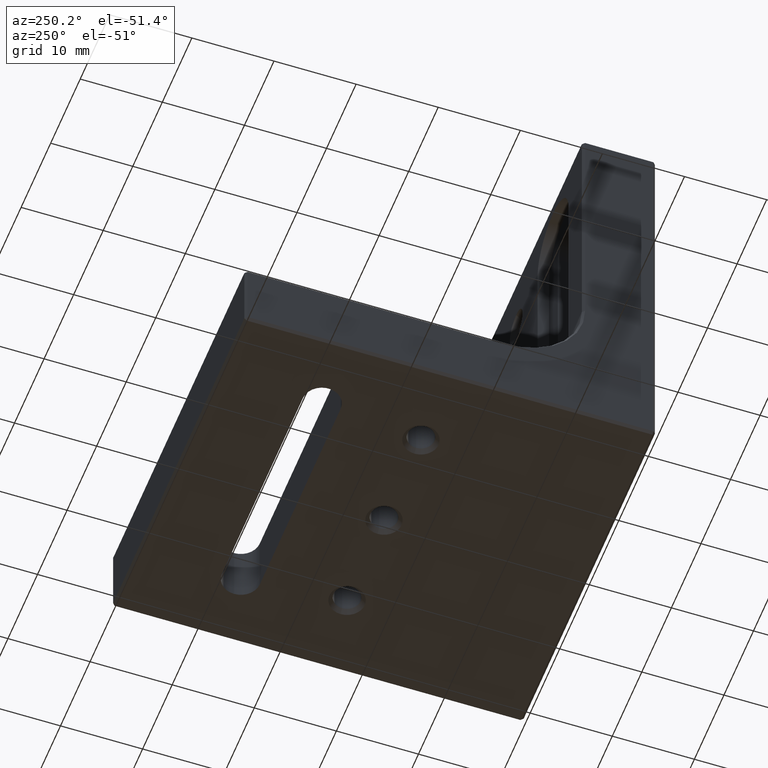
[diagram: clean part render]
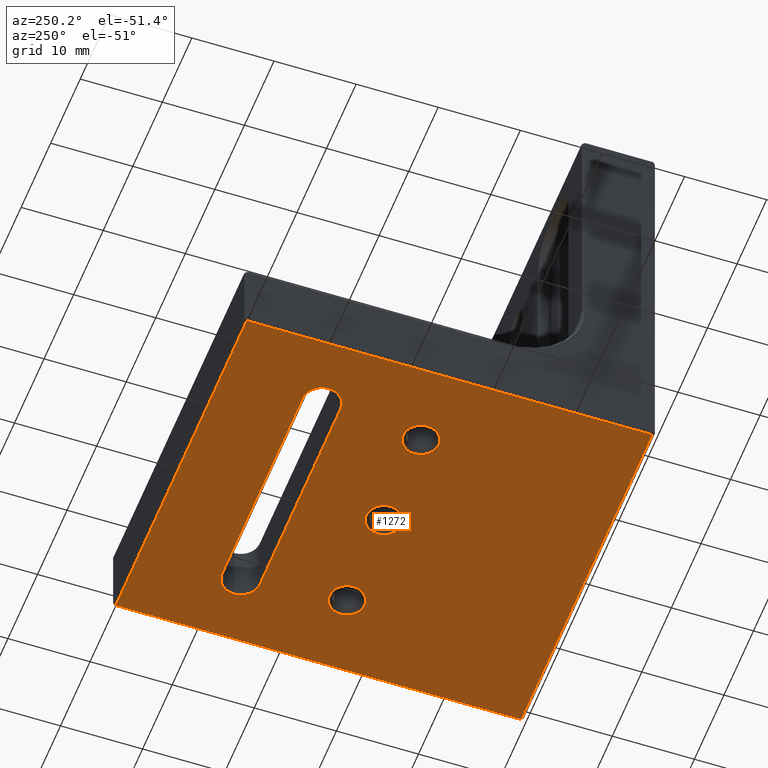
[diagram: same view with one face highlighted and labeled with its STEP entity id]
A machine part, auxiliary view. The second image highlights one B-rep face of the part: STEP entity #1272.
In plain terms, the highlighted planar face has unit normal (0, 0, 1).
Its self-contained STEP definition (entity closure, byte-faithful):
#21 = ORIENTED_EDGE ( 'NONE', *, *, #2597, .T. ) ;
#175 = VERTEX_POINT ( 'NONE', #3523 ) ;
#230 = VERTEX_POINT ( 'NONE', #2139 ) ;
#255 = EDGE_CURVE ( 'NONE', #2031, #3645, #947, .T. ) ;
#279 = DIRECTION ( 'NONE',  ( -0.000000000000000000, -0.000000000000000000, 1.000000000000000000 ) ) ;
#288 = LINE ( 'NONE', #1409, #406 ) ;
#303 = LINE ( 'NONE', #2018, #1726 ) ;
#340 = VERTEX_POINT ( 'NONE', #1391 ) ;
#346 = CIRCLE ( 'NONE', #516, 2.149999999999978151 ) ;
#358 = CARTESIAN_POINT ( 'NONE',  ( 13.70000000000000107, 39.79999999999998295, 0.000000000000000000 ) ) ;
#406 = VECTOR ( 'NONE', #586, 1000.000000000000000 ) ;
#449 = DIRECTION ( 'NONE',  ( 0.000000000000000000, 0.000000000000000000, 1.000000000000000000 ) ) ;
#466 = DIRECTION ( 'NONE',  ( 0.000000000000000000, 0.000000000000000000, 1.000000000000000000 ) ) ;
#478 = DIRECTION ( 'NONE',  ( 1.000000000000000000, 0.000000000000000000, -0.000000000000000000 ) ) ;
#495 = DIRECTION ( 'NONE',  ( 0.000000000000000000, 0.000000000000000000, 1.000000000000000000 ) ) ;
#516 = AXIS2_PLACEMENT_3D ( 'NONE', #1996, #555, #1729 ) ;
#555 = DIRECTION ( 'NONE',  ( 0.000000000000000000, 0.000000000000000000, 1.000000000000000000 ) ) ;
#563 = ORIENTED_EDGE ( 'NONE', *, *, #2014, .T. ) ;
#565 = EDGE_CURVE ( 'NONE', #1423, #1483, #2573, .T. ) ;
#586 = DIRECTION ( 'NONE',  ( 1.000000000000000000, -0.000000000000000000, -0.000000000000000000 ) ) ;
#632 = DIRECTION ( 'NONE',  ( 1.000000000000000000, 0.000000000000000000, 0.000000000000000000 ) ) ;
#636 = CIRCLE ( 'NONE', #3324, 2.149999999999978151 ) ;
#698 = CIRCLE ( 'NONE', #1666, 2.149999999999978151 ) ;
#754 = FACE_BOUND ( 'NONE', #3300, .T. ) ;
#786 = CARTESIAN_POINT ( 'NONE',  ( 2.149999999999978151, 24.99999999999999289, 0.000000000000000000 ) ) ;
#808 = VERTEX_POINT ( 'NONE', #3491 ) ;
#827 = AXIS2_PLACEMENT_3D ( 'NONE', #2608, #851, #3422 ) ;
#851 = DIRECTION ( 'NONE',  ( 0.000000000000000000, 0.000000000000000000, 1.000000000000000000 ) ) ;
#896 = VERTEX_POINT ( 'NONE', #3306 ) ;
#947 = LINE ( 'NONE', #2798, #2863 ) ;
#985 = ORIENTED_EDGE ( 'NONE', *, *, #1974, .T. ) ;
#1039 = EDGE_CURVE ( 'NONE', #1483, #1749, #2163, .T. ) ;
#1048 = DIRECTION ( 'NONE',  ( -0.000000000000000000, -0.000000000000000000, 1.000000000000000000 ) ) ;
#1059 = AXIS2_PLACEMENT_3D ( 'NONE', #3011, #449, #3601 ) ;
#1115 = ORIENTED_EDGE ( 'NONE', *, *, #1039, .T. ) ;
#1126 = CARTESIAN_POINT ( 'NONE',  ( -22.20000000000000284, 0.000000000000000000, 0.000000000000000000 ) ) ;
#1152 = CARTESIAN_POINT ( 'NONE',  ( 13.70000000000000107, 35.20000000000000284, 0.000000000000000000 ) ) ;
#1201 = DIRECTION ( 'NONE',  ( 0.000000000000000000, 0.000000000000000000, 1.000000000000000000 ) ) ;
#1266 = CARTESIAN_POINT ( 'NONE',  ( -13.70000000000000107, 39.79999999999998295, 0.000000000000000000 ) ) ;
#1271 = ORIENTED_EDGE ( 'NONE', *, *, #255, .T. ) ;
#1272 = ADVANCED_FACE ( 'NONE', ( #1883, #3337, #3597, #3006, #754 ), #3040, .F. ) ;
#1320 = ORIENTED_EDGE ( 'NONE', *, *, #1993, .T. ) ;
#1351 = AXIS2_PLACEMENT_3D ( 'NONE', #3581, #1593, #478 ) ;
#1384 = EDGE_CURVE ( 'NONE', #896, #2415, #2888, .T. ) ;
#1391 = CARTESIAN_POINT ( 'NONE',  ( 10.35000000000002274, 24.99999999999999289, 0.000000000000000000 ) ) ;
#1393 = DIRECTION ( 'NONE',  ( -1.000000000000000000, 0.000000000000000000, 0.000000000000000000 ) ) ;
#1409 = CARTESIAN_POINT ( 'NONE',  ( -13.70000000000000107, 39.79999999999998295, 0.000000000000000000 ) ) ;
#1415 = AXIS2_PLACEMENT_3D ( 'NONE', #1460, #279, #3417 ) ;
#1421 = CARTESIAN_POINT ( 'NONE',  ( 13.70000000000000107, 37.49999999999999289, 0.000000000000000000 ) ) ;
#1423 = VERTEX_POINT ( 'NONE', #1704 ) ;
#1460 = CARTESIAN_POINT ( 'NONE',  ( -13.70000000000000107, 37.49999999999999289, 0.000000000000000000 ) ) ;
#1470 = EDGE_LOOP ( 'NONE', ( #563, #1592 ) ) ;
#1483 = VERTEX_POINT ( 'NONE', #1152 ) ;
#1485 = CIRCLE ( 'NONE', #827, 2.149999999999978151 ) ;
#1490 = ORIENTED_EDGE ( 'NONE', *, *, #3681, .F. ) ;
#1577 = VERTEX_POINT ( 'NONE', #786 ) ;
#1592 = ORIENTED_EDGE ( 'NONE', *, *, #2175, .T. ) ;
#1593 = DIRECTION ( 'NONE',  ( 0.000000000000000000, 0.000000000000000000, 1.000000000000000000 ) ) ;
#1627 = EDGE_CURVE ( 'NONE', #2890, #1423, #3499, .T. ) ;
#1649 = DIRECTION ( 'NONE',  ( 1.000000000000000000, 0.000000000000000000, 0.000000000000000000 ) ) ;
#1655 = DIRECTION ( 'NONE',  ( 1.000000000000000000, 0.000000000000000000, 0.000000000000000000 ) ) ;
#1666 = AXIS2_PLACEMENT_3D ( 'NONE', #2002, #1201, #632 ) ;
#1671 = VECTOR ( 'NONE', #2268, 1000.000000000000000 ) ;
#1691 = DIRECTION ( 'NONE',  ( 1.000000000000000000, 0.000000000000000000, 0.000000000000000000 ) ) ;
#1694 = EDGE_CURVE ( 'NONE', #3645, #896, #303, .T. ) ;
#1697 = DIRECTION ( 'NONE',  ( 0.000000000000000000, -1.000000000000000000, 0.000000000000000000 ) ) ;
#1704 = CARTESIAN_POINT ( 'NONE',  ( -13.70000000000001172, 35.20000000000000284, 0.000000000000000000 ) ) ;
#1708 = DIRECTION ( 'NONE',  ( -0.000000000000000000, -0.000000000000000000, 1.000000000000000000 ) ) ;
#1718 = CARTESIAN_POINT ( 'NONE',  ( 22.20000000000000284, 49.70000000000000995, 0.000000000000000000 ) ) ;
#1726 = VECTOR ( 'NONE', #1697, 1000.000000000000000 ) ;
#1729 = DIRECTION ( 'NONE',  ( 1.000000000000000000, 0.000000000000000000, 0.000000000000000000 ) ) ;
#1739 = CARTESIAN_POINT ( 'NONE',  ( -13.70000000000001172, 35.20000000000000284, 0.000000000000000000 ) ) ;
#1743 = VERTEX_POINT ( 'NONE', #358 ) ;
#1746 = AXIS2_PLACEMENT_3D ( 'NONE', #1421, #1708, #1691 ) ;
#1749 = VERTEX_POINT ( 'NONE', #2070 ) ;
#1883 = FACE_BOUND ( 'NONE', #1470, .T. ) ;
#1955 = EDGE_CURVE ( 'NONE', #2620, #175, #2442, .T. ) ;
#1974 = EDGE_CURVE ( 'NONE', #230, #1577, #2908, .T. ) ;
#1978 = LINE ( 'NONE', #1126, #1671 ) ;
#1986 = DIRECTION ( 'NONE',  ( 1.000000000000000000, -0.000000000000000000, -0.000000000000000000 ) ) ;
#1993 = EDGE_CURVE ( 'NONE', #1749, #1743, #3439, .T. ) ;
#1996 = CARTESIAN_POINT ( 'NONE',  ( 12.50000000000000000, 24.99999999999999289, 0.000000000000000000 ) ) ;
#2002 = CARTESIAN_POINT ( 'NONE',  ( -12.50000000000000000, 24.99999999999999289, 0.000000000000000000 ) ) ;
#2014 = EDGE_CURVE ( 'NONE', #340, #808, #636, .T. ) ;
#2018 = CARTESIAN_POINT ( 'NONE',  ( 22.20000000000000284, 0.000000000000000000, 0.000000000000000000 ) ) ;
#2023 = ORIENTED_EDGE ( 'NONE', *, *, #3454, .T. ) ;
#2031 = VERTEX_POINT ( 'NONE', #3170 ) ;
#2070 = CARTESIAN_POINT ( 'NONE',  ( 15.99999999999998934, 37.49999999999999289, 0.000000000000000000 ) ) ;
#2139 = CARTESIAN_POINT ( 'NONE',  ( -2.149999999999978151, 24.99999999999999289, 0.000000000000000000 ) ) ;
#2155 = VECTOR ( 'NONE', #1393, 1000.000000000000000 ) ;
#2163 = CIRCLE ( 'NONE', #1746, 2.299999999999989608 ) ;
#2175 = EDGE_CURVE ( 'NONE', #808, #340, #346, .T. ) ;
#2210 = ORIENTED_EDGE ( 'NONE', *, *, #1384, .T. ) ;
#2268 = DIRECTION ( 'NONE',  ( 0.000000000000000000, 1.000000000000000000, 0.000000000000000000 ) ) ;
#2352 = CARTESIAN_POINT ( 'NONE',  ( -14.64999999999997904, 24.99999999999999289, 0.000000000000000000 ) ) ;
#2362 = ORIENTED_EDGE ( 'NONE', *, *, #1627, .T. ) ;
#2391 = EDGE_LOOP ( 'NONE', ( #985, #21 ) ) ;
#2401 = EDGE_LOOP ( 'NONE', ( #2023, #1271, #3367, #2210 ) ) ;
#2415 = VERTEX_POINT ( 'NONE', #3390 ) ;
#2442 = CIRCLE ( 'NONE', #2679, 2.149999999999978151 ) ;
#2461 = CARTESIAN_POINT ( 'NONE',  ( 13.70000000000000107, 37.49999999999999289, 0.000000000000000000 ) ) ;
#2479 = EDGE_LOOP ( 'NONE', ( #2842, #3187 ) ) ;
#2511 = VECTOR ( 'NONE', #1986, 1000.000000000000000 ) ;
#2573 = LINE ( 'NONE', #1739, #2511 ) ;
#2597 = EDGE_CURVE ( 'NONE', #1577, #230, #1485, .T. ) ;
#2608 = CARTESIAN_POINT ( 'NONE',  ( 0.000000000000000000, 24.99999999999999289, 0.000000000000000000 ) ) ;
#2620 = VERTEX_POINT ( 'NONE', #2352 ) ;
#2679 = AXIS2_PLACEMENT_3D ( 'NONE', #3026, #466, #3046 ) ;
#2798 = CARTESIAN_POINT ( 'NONE',  ( 22.50000000000000000, 49.70000000000000995, 0.000000000000000000 ) ) ;
#2837 = CARTESIAN_POINT ( 'NONE',  ( 22.50000000000000000, 0.2999999999999944378, 0.000000000000000000 ) ) ;
#2842 = ORIENTED_EDGE ( 'NONE', *, *, #1955, .T. ) ;
#2863 = VECTOR ( 'NONE', #1649, 1000.000000000000000 ) ;
#2888 = LINE ( 'NONE', #2837, #2155 ) ;
#2890 = VERTEX_POINT ( 'NONE', #1266 ) ;
#2908 = CIRCLE ( 'NONE', #1059, 2.149999999999978151 ) ;
#3006 = FACE_OUTER_BOUND ( 'NONE', #2401, .T. ) ;
#3011 = CARTESIAN_POINT ( 'NONE',  ( 0.000000000000000000, 24.99999999999999289, 0.000000000000000000 ) ) ;
#3026 = CARTESIAN_POINT ( 'NONE',  ( -12.50000000000000000, 24.99999999999999289, 0.000000000000000000 ) ) ;
#3040 = PLANE ( 'NONE',  #1351 ) ;
#3046 = DIRECTION ( 'NONE',  ( 1.000000000000000000, 0.000000000000000000, 0.000000000000000000 ) ) ;
#3135 = EDGE_CURVE ( 'NONE', #175, #2620, #698, .T. ) ;
#3170 = CARTESIAN_POINT ( 'NONE',  ( -22.20000000000000284, 49.70000000000000995, 0.000000000000000000 ) ) ;
#3187 = ORIENTED_EDGE ( 'NONE', *, *, #3135, .T. ) ;
#3300 = EDGE_LOOP ( 'NONE', ( #1490, #2362, #3651, #1115, #1320 ) ) ;
#3306 = CARTESIAN_POINT ( 'NONE',  ( 22.20000000000000284, 0.2999999999999944378, 0.000000000000000000 ) ) ;
#3324 = AXIS2_PLACEMENT_3D ( 'NONE', #3617, #495, #1655 ) ;
#3337 = FACE_BOUND ( 'NONE', #2391, .T. ) ;
#3367 = ORIENTED_EDGE ( 'NONE', *, *, #1694, .T. ) ;
#3381 = AXIS2_PLACEMENT_3D ( 'NONE', #2461, #1048, #3586 ) ;
#3390 = CARTESIAN_POINT ( 'NONE',  ( -22.20000000000000284, 0.2999999999999944378, 0.000000000000000000 ) ) ;
#3417 = DIRECTION ( 'NONE',  ( 1.000000000000000000, 0.000000000000000000, 0.000000000000000000 ) ) ;
#3422 = DIRECTION ( 'NONE',  ( 1.000000000000000000, 0.000000000000000000, 0.000000000000000000 ) ) ;
#3439 = CIRCLE ( 'NONE', #3381, 2.299999999999989608 ) ;
#3454 = EDGE_CURVE ( 'NONE', #2415, #2031, #1978, .T. ) ;
#3491 = CARTESIAN_POINT ( 'NONE',  ( 14.64999999999997904, 24.99999999999999289, 0.000000000000000000 ) ) ;
#3499 = CIRCLE ( 'NONE', #1415, 2.299999999999987832 ) ;
#3523 = CARTESIAN_POINT ( 'NONE',  ( -10.35000000000002274, 24.99999999999999289, 0.000000000000000000 ) ) ;
#3581 = CARTESIAN_POINT ( 'NONE',  ( 22.50000000000000000, 0.000000000000000000, 0.000000000000000000 ) ) ;
#3586 = DIRECTION ( 'NONE',  ( 1.000000000000000000, 0.000000000000000000, 0.000000000000000000 ) ) ;
#3597 = FACE_BOUND ( 'NONE', #2479, .T. ) ;
#3601 = DIRECTION ( 'NONE',  ( 1.000000000000000000, 0.000000000000000000, 0.000000000000000000 ) ) ;
#3617 = CARTESIAN_POINT ( 'NONE',  ( 12.50000000000000000, 24.99999999999999289, 0.000000000000000000 ) ) ;
#3645 = VERTEX_POINT ( 'NONE', #1718 ) ;
#3651 = ORIENTED_EDGE ( 'NONE', *, *, #565, .T. ) ;
#3681 = EDGE_CURVE ( 'NONE', #2890, #1743, #288, .T. ) ;